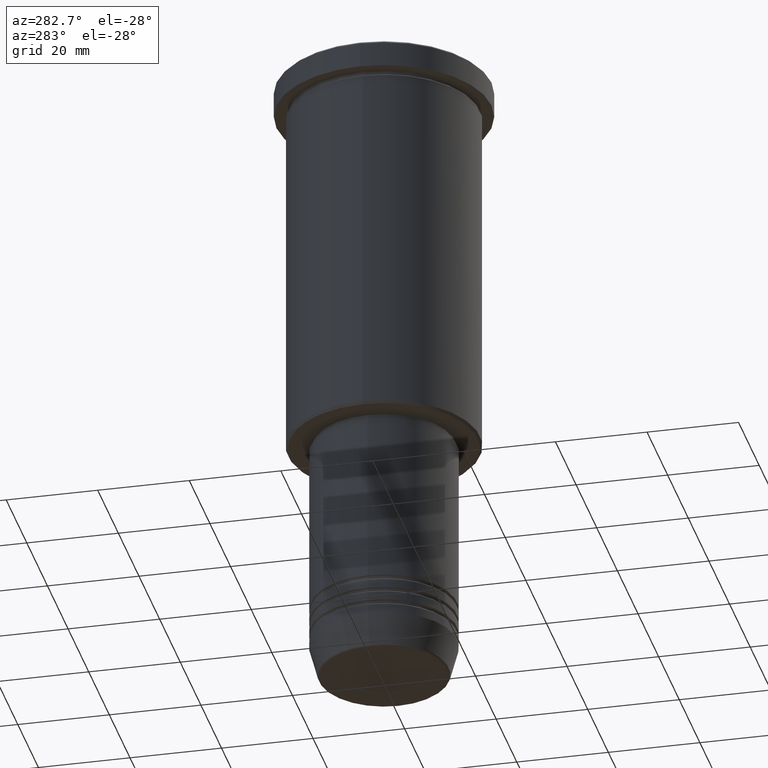
[diagram: clean part render]
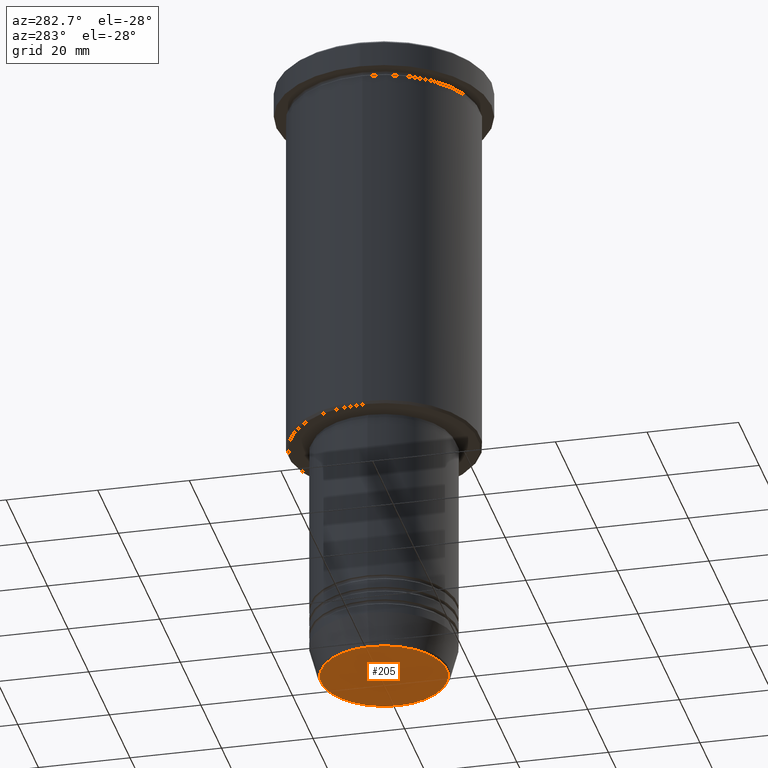
[diagram: same view with one face highlighted and labeled with its STEP entity id]
A machine part, auxiliary view. The second image highlights one B-rep face of the part: STEP entity #205.
In plain terms, the highlighted planar face has unit normal (0, -0, 1).
Its self-contained STEP definition (entity closure, byte-faithful):
#17 = ORIENTED_EDGE ( 'NONE', *, *, #329, .T. ) ;
#46 = CARTESIAN_POINT ( 'NONE',  ( 13.74069215899265828, 0.000000000000000000, -141.0000000000000000 ) ) ;
#48 = EDGE_LOOP ( 'NONE', ( #892, #17 ) ) ;
#169 = CIRCLE ( 'NONE', #839, 13.74069215899265828 ) ;
#172 = AXIS2_PLACEMENT_3D ( 'NONE', #756, #1128, #473 ) ;
#193 = PLANE ( 'NONE',  #320 ) ;
#205 = ADVANCED_FACE ( 'NONE', ( #399 ), #193, .F. ) ;
#320 = AXIS2_PLACEMENT_3D ( 'NONE', #437, #490, #440 ) ;
#329 = EDGE_CURVE ( 'NONE', #810, #1084, #169, .T. ) ;
#361 = CARTESIAN_POINT ( 'NONE',  ( 0.000000000000000000, 0.000000000000000000, -141.0000000000000000 ) ) ;
#375 = CARTESIAN_POINT ( 'NONE',  ( -13.74069215899265828, 1.712322416342415986E-15, -141.0000000000000000 ) ) ;
#399 = FACE_OUTER_BOUND ( 'NONE', #48, .T. ) ;
#437 = CARTESIAN_POINT ( 'NONE',  ( 0.000000000000000000, 0.000000000000000000, -141.0000000000000000 ) ) ;
#440 = DIRECTION ( 'NONE',  ( 1.000000000000000000, 0.000000000000000000, 0.000000000000000000 ) ) ;
#473 = DIRECTION ( 'NONE',  ( 1.000000000000000000, 0.000000000000000000, 0.000000000000000000 ) ) ;
#490 = DIRECTION ( 'NONE',  ( 0.000000000000000000, -0.000000000000000000, 1.000000000000000000 ) ) ;
#641 = DIRECTION ( 'NONE',  ( 0.000000000000000000, 0.000000000000000000, -1.000000000000000000 ) ) ;
#726 = DIRECTION ( 'NONE',  ( 1.000000000000000000, 0.000000000000000000, 0.000000000000000000 ) ) ;
#756 = CARTESIAN_POINT ( 'NONE',  ( 0.000000000000000000, 0.000000000000000000, -141.0000000000000000 ) ) ;
#810 = VERTEX_POINT ( 'NONE', #375 ) ;
#839 = AXIS2_PLACEMENT_3D ( 'NONE', #361, #641, #726 ) ;
#889 = EDGE_CURVE ( 'NONE', #1084, #810, #1137, .T. ) ;
#892 = ORIENTED_EDGE ( 'NONE', *, *, #889, .T. ) ;
#1084 = VERTEX_POINT ( 'NONE', #46 ) ;
#1128 = DIRECTION ( 'NONE',  ( 0.000000000000000000, 0.000000000000000000, -1.000000000000000000 ) ) ;
#1137 = CIRCLE ( 'NONE', #172, 13.74069215899265828 ) ;